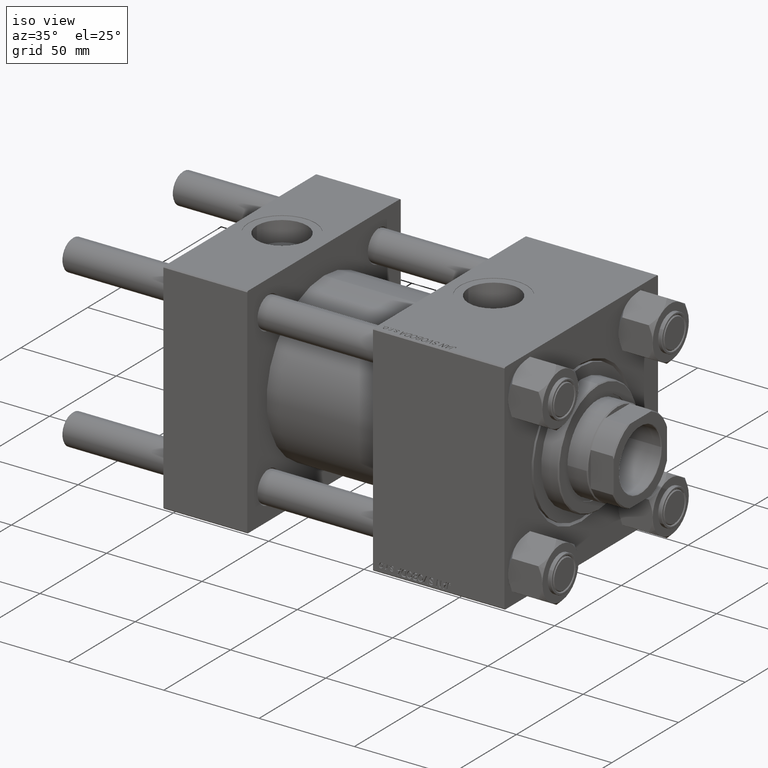
[diagram: clean part render]
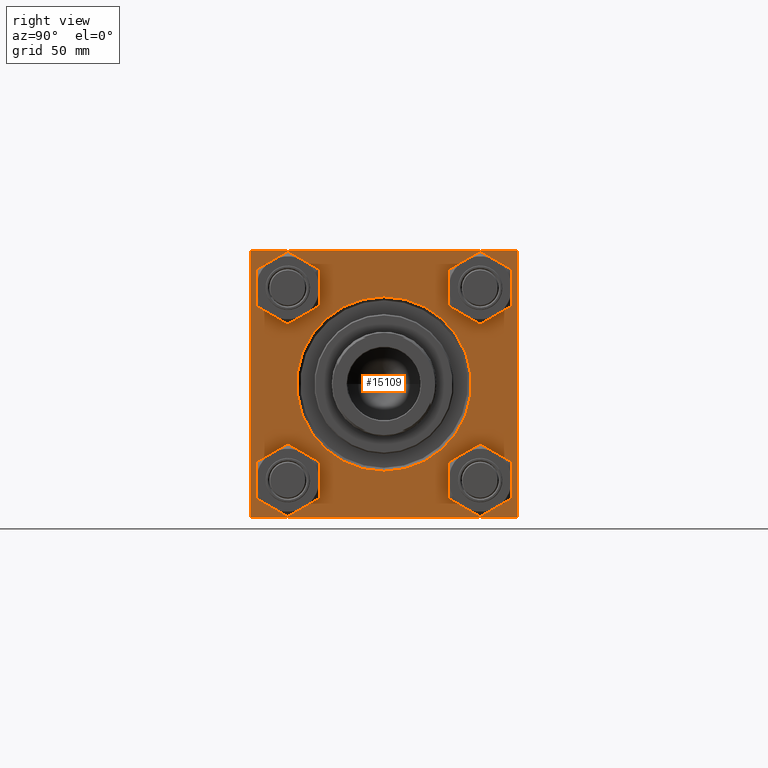
[diagram: tour spotlight — one face highlighted and labeled with its STEP entity id]
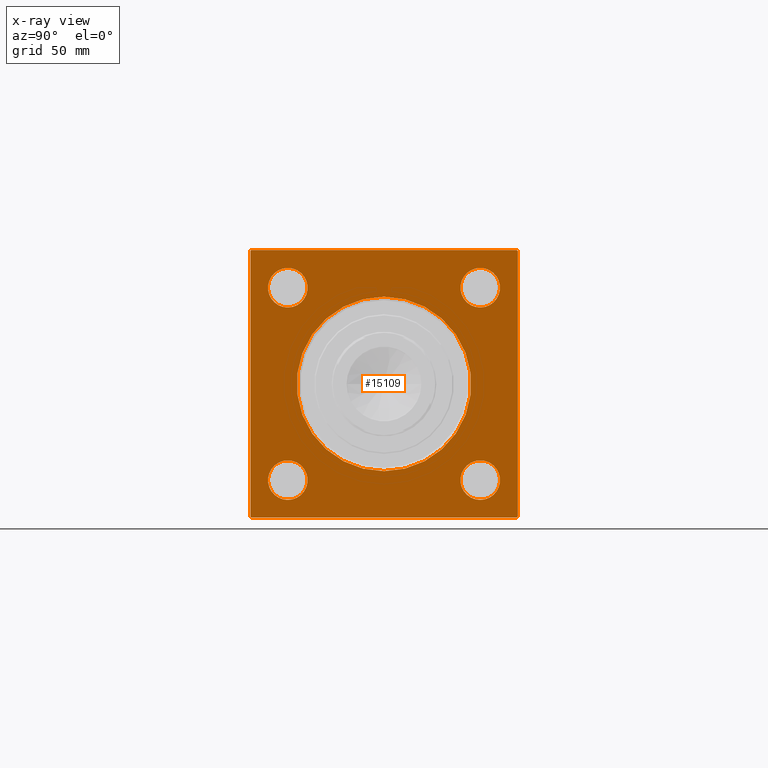
[diagram: x-ray of the same camera — body ghosted, this tour face saturated]
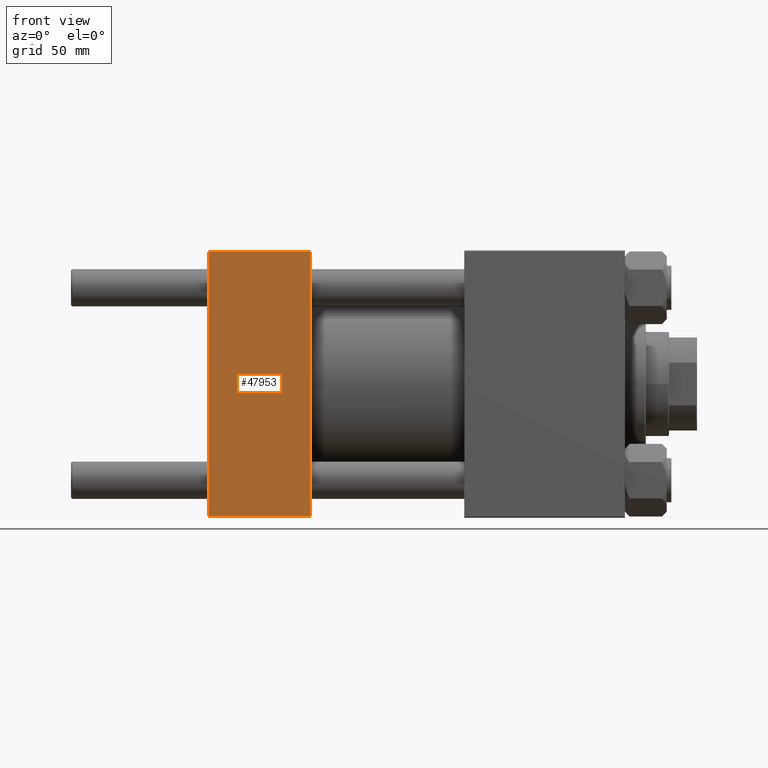
[diagram: tour spotlight — one face highlighted and labeled with its STEP entity id]
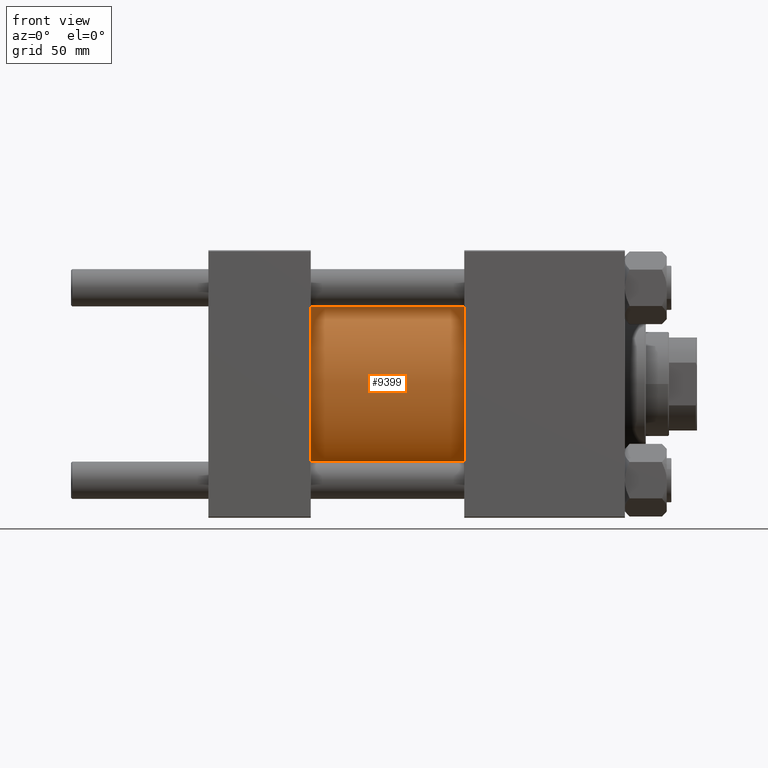
[diagram: tour spotlight — one face highlighted and labeled with its STEP entity id]
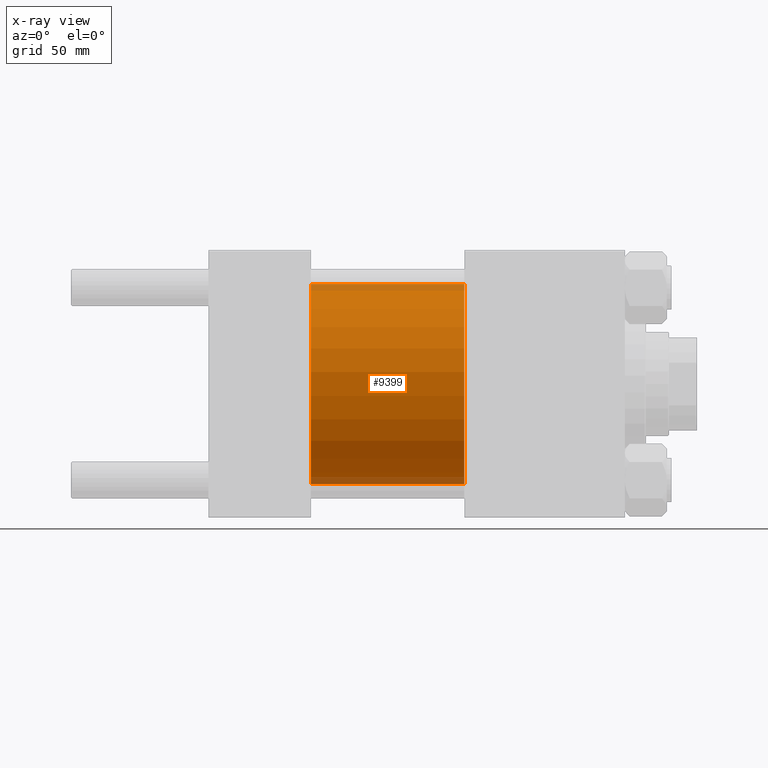
[diagram: x-ray of the same camera — body ghosted, this tour face saturated]
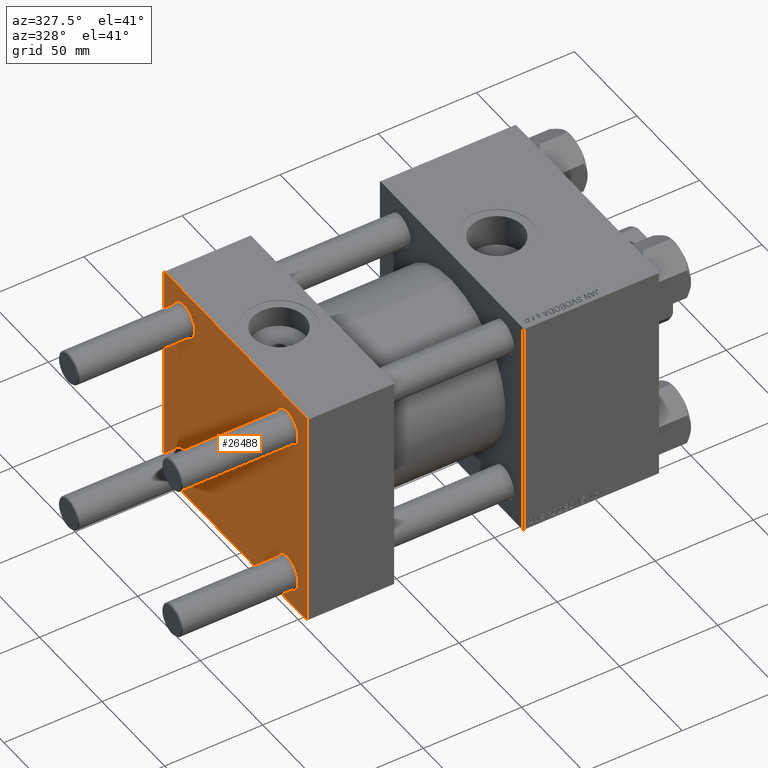
[diagram: tour spotlight — one face highlighted and labeled with its STEP entity id]
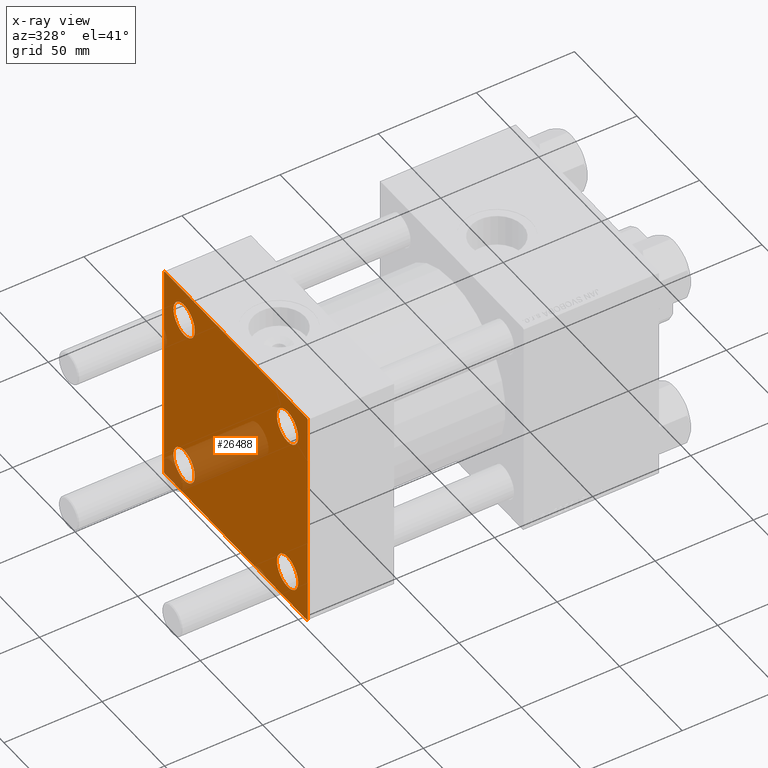
[diagram: x-ray of the same camera — body ghosted, this tour face saturated]
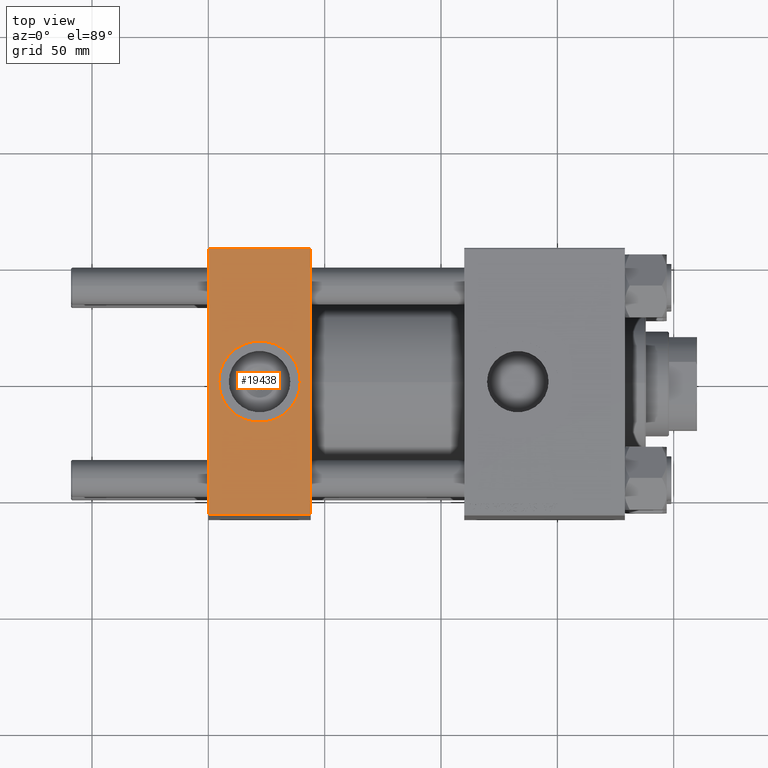
[diagram: tour spotlight — one face highlighted and labeled with its STEP entity id]
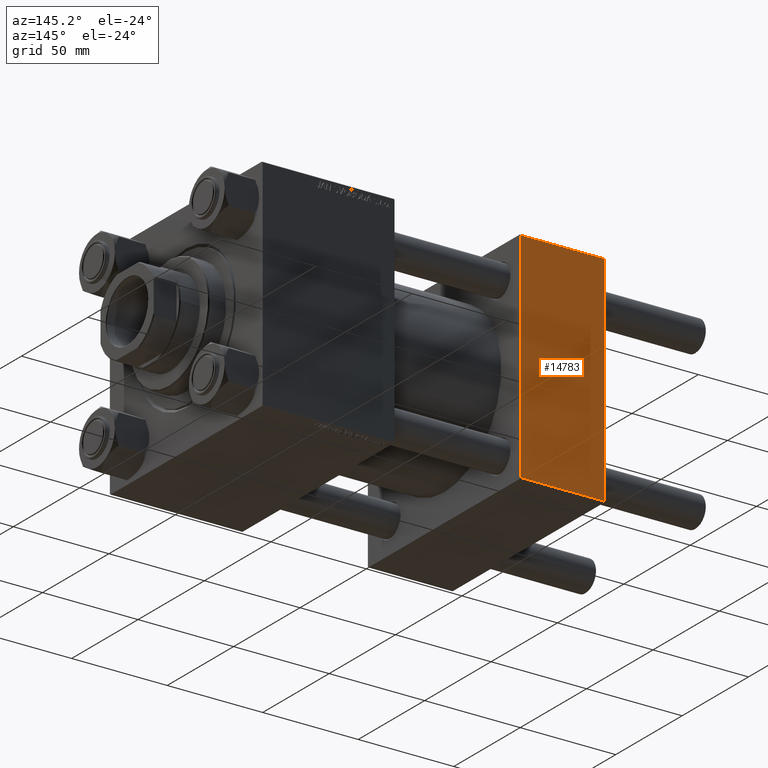
[diagram: tour spotlight — one face highlighted and labeled with its STEP entity id]
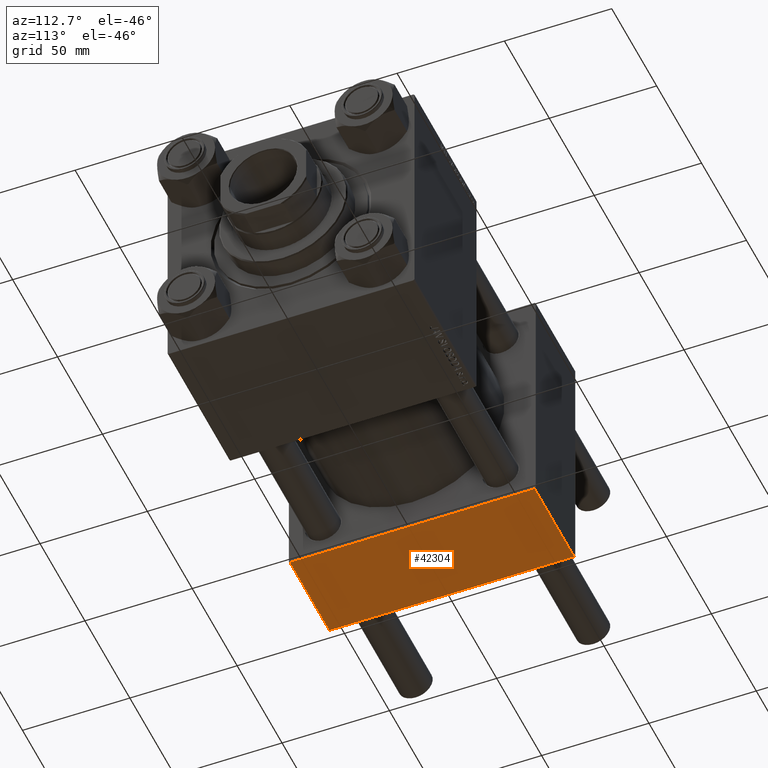
[diagram: tour spotlight — one face highlighted and labeled with its STEP entity id]
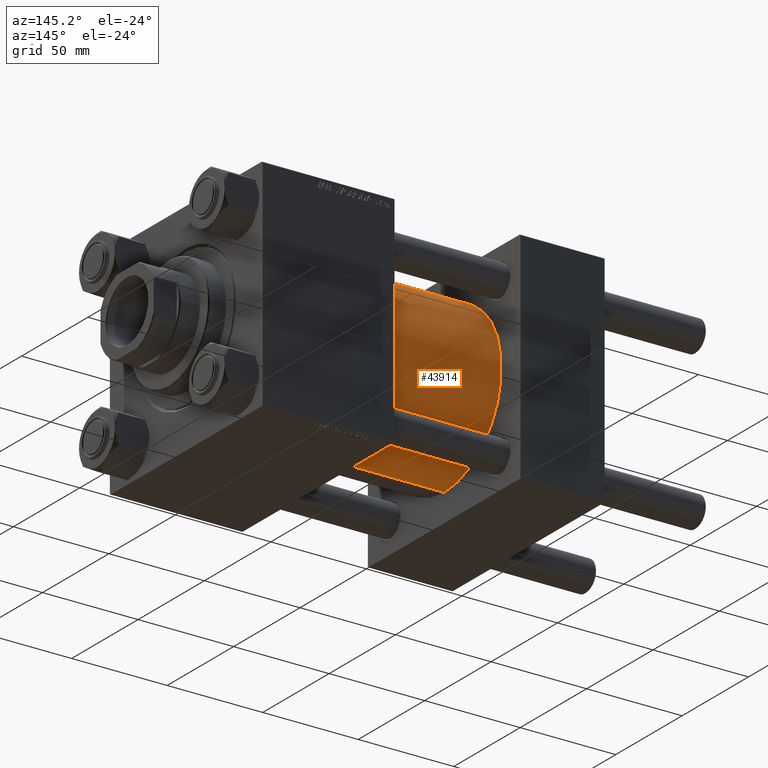
[diagram: tour spotlight — one face highlighted and labeled with its STEP entity id]
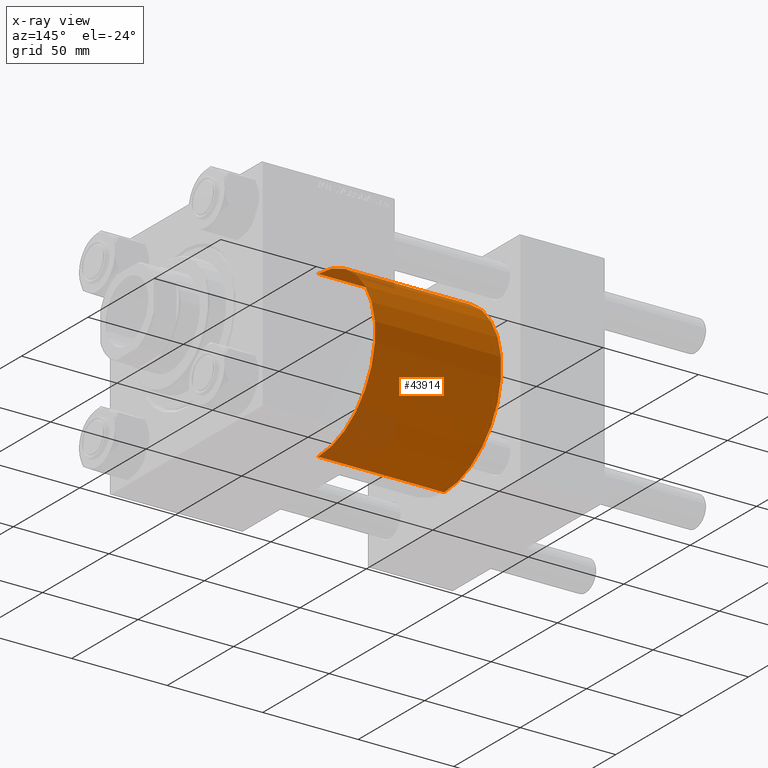
[diagram: x-ray of the same camera — body ghosted, this tour face saturated]
A machine part: a face-by-face anatomy tour. The part has 1182 B-rep faces; the first image is the clean iso view, then the 8 largest visible faces are spotlighted one at a time (largest first), each with its STEP entity span.

Face 1 — right view, entity #15109. An x-ray twin of the same camera follows (body ghosted, this face saturated) — the face is partly hidden behind the body. In plain terms, the highlighted planar face has unit normal (-1, 0, 0).
Definition (entity closure, byte-faithful):
#619 = AXIS2_PLACEMENT_3D ( 'NONE', #18191, #22260, #33699 ) ;
#854 = ORIENTED_EDGE ( 'NONE', *, *, #8303, .T. ) ;
#1419 = EDGE_CURVE ( 'NONE', #46742, #24269, #14609, .T. ) ;
#1478 = DIRECTION ( 'NONE',  ( 0.000000000000000000, -1.000000000000000000, -1.206764157201257291E-16 ) ) ;
#1896 = VECTOR ( 'NONE', #8384, 1000.000000000000000 ) ;
#1939 = VERTEX_POINT ( 'NONE', #32703 ) ;
#2101 = CARTESIAN_POINT ( 'NONE',  ( 179.0000000000000000, -56.99999999999998579, 57.49999999999999289 ) ) ;
#2364 = CIRCLE ( 'NONE', #8051, 8.500000000000007105 ) ;
#2789 = DIRECTION ( 'NONE',  ( 0.000000000000000000, 0.000000000000000000, -1.000000000000000000 ) ) ;
#2801 = AXIS2_PLACEMENT_3D ( 'NONE', #41489, #37939, #37449 ) ;
#2892 = DIRECTION ( 'NONE',  ( 0.000000000000000000, 0.000000000000000000, 1.000000000000000000 ) ) ;
#3598 = EDGE_CURVE ( 'NONE', #37750, #13960, #21989, .T. ) ;
#3931 = AXIS2_PLACEMENT_3D ( 'NONE', #26360, #41314, #7530 ) ;
#4131 = DIRECTION ( 'NONE',  ( 0.000000000000000000, -0.7071067811865672237, 0.7071067811865279218 ) ) ;
#4399 = CIRCLE ( 'NONE', #21433, 37.50000000000000711 ) ;
#4417 = ORIENTED_EDGE ( 'NONE', *, *, #20425, .T. ) ;
#4564 = VERTEX_POINT ( 'NONE', #41768 ) ;
#5117 = CARTESIAN_POINT ( 'NONE',  ( 179.0000000000000000, 41.34999999999999432, -49.85000000000001563 ) ) ;
#5842 = CARTESIAN_POINT ( 'NONE',  ( 179.0000000000000000, -57.49999999999999289, 57.49999999999999289 ) ) ;
#6172 = CARTESIAN_POINT ( 'NONE',  ( 179.0000000000000000, 0.000000000000000000, 0.000000000000000000 ) ) ;
#6333 = LINE ( 'NONE', #5842, #40419 ) ;
#6472 = DIRECTION ( 'NONE',  ( 0.000000000000000000, 0.000000000000000000, -1.000000000000000000 ) ) ;
#7029 = EDGE_CURVE ( 'NONE', #41380, #47054, #20780, .T. ) ;
#7032 = EDGE_LOOP ( 'NONE', ( #45254, #17626 ) ) ;
#7530 = DIRECTION ( 'NONE',  ( 0.000000000000000000, 0.000000000000000000, 1.000000000000000000 ) ) ;
#7865 = VERTEX_POINT ( 'NONE', #16719 ) ;
#7925 = ORIENTED_EDGE ( 'NONE', *, *, #7029, .F. ) ;
#8009 = CARTESIAN_POINT ( 'NONE',  ( 179.0000000000000000, 4.592425496802575156E-15, 37.50000000000000711 ) ) ;
#8051 = AXIS2_PLACEMENT_3D ( 'NONE', #24371, #24870, #20551 ) ;
#8303 = EDGE_CURVE ( 'NONE', #22466, #24485, #27702, .T. ) ;
#8384 = DIRECTION ( 'NONE',  ( -0.000000000000000000, -0.7071067811865328068, -0.7071067811865622277 ) ) ;
#8410 = LINE ( 'NONE', #12210, #20954 ) ;
#8724 = LINE ( 'NONE', #24238, #29789 ) ;
#9026 = CIRCLE ( 'NONE', #32563, 8.500000000000007105 ) ;
#9290 = CIRCLE ( 'NONE', #2801, 8.500000000000007105 ) ;
#9683 = DIRECTION ( 'NONE',  ( 0.000000000000000000, 0.000000000000000000, 1.000000000000000000 ) ) ;
#10232 = FACE_BOUND ( 'NONE', #18011, .T. ) ;
#10681 = CARTESIAN_POINT ( 'NONE',  ( 179.0000000000000000, -41.34999999999998721, -32.85000000000000142 ) ) ;
#11433 = AXIS2_PLACEMENT_3D ( 'NONE', #34658, #50122, #15327 ) ;
#11981 = EDGE_CURVE ( 'NONE', #1939, #39720, #20374, .T. ) ;
#12187 = CARTESIAN_POINT ( 'NONE',  ( 179.0000000000000000, -56.99999999999995737, -57.49999999999997868 ) ) ;
#12210 = CARTESIAN_POINT ( 'NONE',  ( 179.0000000000000000, 57.50000000000000000, -56.99999999999994316 ) ) ;
#12376 = EDGE_CURVE ( 'NONE', #38956, #22168, #31276, .T. ) ;
#12745 = VERTEX_POINT ( 'NONE', #16431 ) ;
#13316 = CARTESIAN_POINT ( 'NONE',  ( 179.0000000000000000, 0.000000000000000000, -37.50000000000000711 ) ) ;
#13588 = LINE ( 'NONE', #40516, #16914 ) ;
#13960 = VERTEX_POINT ( 'NONE', #8009 ) ;
#14127 = EDGE_CURVE ( 'NONE', #13960, #37750, #4399, .T. ) ;
#14284 = DIRECTION ( 'NONE',  ( -1.000000000000000000, 0.000000000000000000, -0.000000000000000000 ) ) ;
#14553 = CARTESIAN_POINT ( 'NONE',  ( 179.0000000000000000, 57.00000000000000000, -57.49999999999996447 ) ) ;
#14609 = CIRCLE ( 'NONE', #21110, 8.500000000000007105 ) ;
#15109 = ADVANCED_FACE ( 'NONE', ( #34363, #18855, #10232, #25741, #41214, #25493 ), #30561, .F. ) ;
#15327 = DIRECTION ( 'NONE',  ( 0.000000000000000000, 0.000000000000000000, 1.000000000000000000 ) ) ;
#16057 = CARTESIAN_POINT ( 'NONE',  ( 179.0000000000000000, -41.34999999999998721, -41.35000000000000853 ) ) ;
#16388 = DIRECTION ( 'NONE',  ( -1.000000000000000000, 0.000000000000000000, -0.000000000000000000 ) ) ;
#16431 = CARTESIAN_POINT ( 'NONE',  ( 179.0000000000000000, -57.49999999999999289, -56.99999999999997868 ) ) ;
#16719 = CARTESIAN_POINT ( 'NONE',  ( 179.0000000000000000, 41.34999999999999432, 49.85000000000001563 ) ) ;
#16914 = VECTOR ( 'NONE', #6472, 1000.000000000000000 ) ;
#16923 = LINE ( 'NONE', #12187, #45920 ) ;
#17288 = VECTOR ( 'NONE', #4131, 1000.000000000000000 ) ;
#17445 = CARTESIAN_POINT ( 'NONE',  ( 179.0000000000000000, -57.49999999999999289, 56.99999999999996447 ) ) ;
#17626 = ORIENTED_EDGE ( 'NONE', *, *, #18717, .T. ) ;
#17681 = ORIENTED_EDGE ( 'NONE', *, *, #26279, .T. ) ;
#17798 = ORIENTED_EDGE ( 'NONE', *, *, #28508, .T. ) ;
#18011 = EDGE_LOOP ( 'NONE', ( #20659, #46059 ) ) ;
#18191 = CARTESIAN_POINT ( 'NONE',  ( 179.0000000000000000, -41.34999999999998721, -41.35000000000000853 ) ) ;
#18431 = EDGE_LOOP ( 'NONE', ( #17798, #854 ) ) ;
#18717 = EDGE_CURVE ( 'NONE', #4564, #50178, #9290, .T. ) ;
#18855 = FACE_BOUND ( 'NONE', #7032, .T. ) ;
#19405 = ORIENTED_EDGE ( 'NONE', *, *, #1419, .T. ) ;
#19406 = CARTESIAN_POINT ( 'NONE',  ( 179.0000000000000000, 41.34999999999999432, 32.84999999999999432 ) ) ;
#20343 = EDGE_CURVE ( 'NONE', #12745, #47054, #16923, .T. ) ;
#20374 = LINE ( 'NONE', #46532, #17288 ) ;
#20425 = EDGE_CURVE ( 'NONE', #24269, #46742, #38644, .T. ) ;
#20551 = DIRECTION ( 'NONE',  ( 0.000000000000000000, 0.000000000000000000, 1.000000000000000000 ) ) ;
#20659 = ORIENTED_EDGE ( 'NONE', *, *, #26852, .T. ) ;
#20780 = LINE ( 'NONE', #36278, #45502 ) ;
#20954 = VECTOR ( 'NONE', #42935, 1000.000000000000000 ) ;
#21110 = AXIS2_PLACEMENT_3D ( 'NONE', #16057, #33322, #9683 ) ;
#21433 = AXIS2_PLACEMENT_3D ( 'NONE', #26269, #22195, #2892 ) ;
#21477 = DIRECTION ( 'NONE',  ( -1.000000000000000000, 0.000000000000000000, -0.000000000000000000 ) ) ;
#21694 = ORIENTED_EDGE ( 'NONE', *, *, #3598, .T. ) ;
#21989 = CIRCLE ( 'NONE', #11433, 37.50000000000000711 ) ;
#22168 = VERTEX_POINT ( 'NONE', #17445 ) ;
#22195 = DIRECTION ( 'NONE',  ( -1.000000000000000000, 0.000000000000000000, -0.000000000000000000 ) ) ;
#22260 = DIRECTION ( 'NONE',  ( -1.000000000000000000, 0.000000000000000000, -0.000000000000000000 ) ) ;
#22466 = VERTEX_POINT ( 'NONE', #29103 ) ;
#22547 = CARTESIAN_POINT ( 'NONE',  ( 179.0000000000000000, -41.34999999999998721, -49.85000000000002274 ) ) ;
#22765 = EDGE_CURVE ( 'NONE', #39720, #38956, #8724, .T. ) ;
#22771 = EDGE_LOOP ( 'NONE', ( #21694, #25228 ) ) ;
#23197 = CARTESIAN_POINT ( 'NONE',  ( 179.0000000000000000, 41.34999999999999432, -41.35000000000000142 ) ) ;
#23518 = VERTEX_POINT ( 'NONE', #19406 ) ;
#24238 = CARTESIAN_POINT ( 'NONE',  ( 179.0000000000000000, 57.50000000000000000, 57.50000000000000711 ) ) ;
#24269 = VERTEX_POINT ( 'NONE', #22547 ) ;
#24371 = CARTESIAN_POINT ( 'NONE',  ( 179.0000000000000000, -41.34999999999998721, 41.35000000000000853 ) ) ;
#24485 = VERTEX_POINT ( 'NONE', #36983 ) ;
#24583 = ORIENTED_EDGE ( 'NONE', *, *, #26138, .T. ) ;
#24692 = AXIS2_PLACEMENT_3D ( 'NONE', #23197, #49833, #42477 ) ;
#24870 = DIRECTION ( 'NONE',  ( -1.000000000000000000, 0.000000000000000000, -0.000000000000000000 ) ) ;
#25228 = ORIENTED_EDGE ( 'NONE', *, *, #14127, .T. ) ;
#25493 = FACE_OUTER_BOUND ( 'NONE', #33550, .T. ) ;
#25741 = FACE_BOUND ( 'NONE', #18431, .T. ) ;
#26049 = DIRECTION ( 'NONE',  ( 0.000000000000000000, 0.000000000000000000, 1.000000000000000000 ) ) ;
#26138 = EDGE_CURVE ( 'NONE', #41380, #48674, #8410, .T. ) ;
#26269 = CARTESIAN_POINT ( 'NONE',  ( 179.0000000000000000, 0.000000000000000000, 0.000000000000000000 ) ) ;
#26279 = EDGE_CURVE ( 'NONE', #22168, #12745, #6333, .T. ) ;
#26360 = CARTESIAN_POINT ( 'NONE',  ( 179.0000000000000000, 41.34999999999999432, 41.35000000000000142 ) ) ;
#26640 = CIRCLE ( 'NONE', #3931, 8.500000000000007105 ) ;
#26852 = EDGE_CURVE ( 'NONE', #23518, #7865, #26640, .T. ) ;
#27157 = AXIS2_PLACEMENT_3D ( 'NONE', #6172, #14284, #37663 ) ;
#27325 = ORIENTED_EDGE ( 'NONE', *, *, #20343, .T. ) ;
#27555 = DIRECTION ( 'NONE',  ( 0.000000000000000000, -1.000000000000000000, -1.206764157201257291E-16 ) ) ;
#27702 = CIRCLE ( 'NONE', #34172, 8.500000000000007105 ) ;
#28066 = EDGE_CURVE ( 'NONE', #1939, #48674, #13588, .T. ) ;
#28207 = CARTESIAN_POINT ( 'NONE',  ( 179.0000000000000000, -57.49999999999999289, 56.99999999999996447 ) ) ;
#28508 = EDGE_CURVE ( 'NONE', #24485, #22466, #2364, .T. ) ;
#28595 = DIRECTION ( 'NONE',  ( 0.000000000000000000, 0.000000000000000000, 1.000000000000000000 ) ) ;
#29103 = CARTESIAN_POINT ( 'NONE',  ( 179.0000000000000000, -41.34999999999998721, 49.85000000000002274 ) ) ;
#29789 = VECTOR ( 'NONE', #27555, 1000.000000000000000 ) ;
#29934 = ORIENTED_EDGE ( 'NONE', *, *, #11981, .T. ) ;
#30014 = ORIENTED_EDGE ( 'NONE', *, *, #28066, .F. ) ;
#30561 = PLANE ( 'NONE',  #27157 ) ;
#31276 = LINE ( 'NONE', #28207, #1896 ) ;
#32152 = CARTESIAN_POINT ( 'NONE',  ( 179.0000000000000000, 41.34999999999999432, 41.35000000000000142 ) ) ;
#32563 = AXIS2_PLACEMENT_3D ( 'NONE', #32152, #16388, #28595 ) ;
#32703 = CARTESIAN_POINT ( 'NONE',  ( 179.0000000000000000, 57.50000000000000000, 57.00000000000000711 ) ) ;
#33322 = DIRECTION ( 'NONE',  ( -1.000000000000000000, 0.000000000000000000, -0.000000000000000000 ) ) ;
#33550 = EDGE_LOOP ( 'NONE', ( #17681, #27325, #7925, #24583, #30014, #29934, #49314, #42273 ) ) ;
#33699 = DIRECTION ( 'NONE',  ( 0.000000000000000000, 0.000000000000000000, 1.000000000000000000 ) ) ;
#34172 = AXIS2_PLACEMENT_3D ( 'NONE', #41519, #21477, #26049 ) ;
#34363 = FACE_BOUND ( 'NONE', #49420, .T. ) ;
#34658 = CARTESIAN_POINT ( 'NONE',  ( 179.0000000000000000, 0.000000000000000000, 0.000000000000000000 ) ) ;
#36278 = CARTESIAN_POINT ( 'NONE',  ( 179.0000000000000000, 57.50000000000000000, -57.49999999999996447 ) ) ;
#36983 = CARTESIAN_POINT ( 'NONE',  ( 179.0000000000000000, -41.34999999999998721, 32.85000000000000142 ) ) ;
#37449 = DIRECTION ( 'NONE',  ( 0.000000000000000000, 0.000000000000000000, 1.000000000000000000 ) ) ;
#37663 = DIRECTION ( 'NONE',  ( -0.000000000000000000, 0.000000000000000000, 1.000000000000000000 ) ) ;
#37750 = VERTEX_POINT ( 'NONE', #13316 ) ;
#37837 = EDGE_CURVE ( 'NONE', #7865, #23518, #9026, .T. ) ;
#37939 = DIRECTION ( 'NONE',  ( -1.000000000000000000, 0.000000000000000000, -0.000000000000000000 ) ) ;
#38644 = CIRCLE ( 'NONE', #619, 8.500000000000007105 ) ;
#38956 = VERTEX_POINT ( 'NONE', #2101 ) ;
#39720 = VERTEX_POINT ( 'NONE', #48680 ) ;
#40147 = CARTESIAN_POINT ( 'NONE',  ( 179.0000000000000000, 57.50000000000000000, -56.99999999999994316 ) ) ;
#40303 = DIRECTION ( 'NONE',  ( 0.000000000000000000, 0.7071067811865721087, -0.7071067811865230368 ) ) ;
#40419 = VECTOR ( 'NONE', #2789, 1000.000000000000000 ) ;
#40516 = CARTESIAN_POINT ( 'NONE',  ( 179.0000000000000000, 57.50000000000000000, 57.50000000000000711 ) ) ;
#41214 = FACE_BOUND ( 'NONE', #22771, .T. ) ;
#41314 = DIRECTION ( 'NONE',  ( -1.000000000000000000, 0.000000000000000000, -0.000000000000000000 ) ) ;
#41380 = VERTEX_POINT ( 'NONE', #14553 ) ;
#41489 = CARTESIAN_POINT ( 'NONE',  ( 179.0000000000000000, 41.34999999999999432, -41.35000000000000142 ) ) ;
#41519 = CARTESIAN_POINT ( 'NONE',  ( 179.0000000000000000, -41.34999999999998721, 41.35000000000000853 ) ) ;
#41768 = CARTESIAN_POINT ( 'NONE',  ( 179.0000000000000000, 41.34999999999999432, -32.84999999999999432 ) ) ;
#42273 = ORIENTED_EDGE ( 'NONE', *, *, #12376, .T. ) ;
#42477 = DIRECTION ( 'NONE',  ( 0.000000000000000000, 0.000000000000000000, 1.000000000000000000 ) ) ;
#42935 = DIRECTION ( 'NONE',  ( -0.000000000000000000, 0.7071067811865279218, 0.7071067811865672237 ) ) ;
#45254 = ORIENTED_EDGE ( 'NONE', *, *, #45687, .T. ) ;
#45502 = VECTOR ( 'NONE', #1478, 1000.000000000000000 ) ;
#45687 = EDGE_CURVE ( 'NONE', #50178, #4564, #46581, .T. ) ;
#45920 = VECTOR ( 'NONE', #40303, 1000.000000000000000 ) ;
#46059 = ORIENTED_EDGE ( 'NONE', *, *, #37837, .T. ) ;
#46532 = CARTESIAN_POINT ( 'NONE',  ( 179.0000000000000000, 56.99999999999997158, 57.50000000000000711 ) ) ;
#46581 = CIRCLE ( 'NONE', #24692, 8.500000000000007105 ) ;
#46742 = VERTEX_POINT ( 'NONE', #10681 ) ;
#47054 = VERTEX_POINT ( 'NONE', #48215 ) ;
#48215 = CARTESIAN_POINT ( 'NONE',  ( 179.0000000000000000, -56.99999999999995737, -57.49999999999997868 ) ) ;
#48674 = VERTEX_POINT ( 'NONE', #40147 ) ;
#48680 = CARTESIAN_POINT ( 'NONE',  ( 179.0000000000000000, 56.99999999999997158, 57.50000000000000711 ) ) ;
#49314 = ORIENTED_EDGE ( 'NONE', *, *, #22765, .T. ) ;
#49420 = EDGE_LOOP ( 'NONE', ( #4417, #19405 ) ) ;
#49833 = DIRECTION ( 'NONE',  ( -1.000000000000000000, 0.000000000000000000, -0.000000000000000000 ) ) ;
#50122 = DIRECTION ( 'NONE',  ( -1.000000000000000000, 0.000000000000000000, -0.000000000000000000 ) ) ;
#50178 = VERTEX_POINT ( 'NONE', #5117 ) ;

Face 2 — front view, entity #47953. In plain terms, the highlighted planar face has unit normal (0, 1, 0).
Definition (entity closure, byte-faithful):
#724 = FACE_OUTER_BOUND ( 'NONE', #48084, .T. ) ;
#1221 = PLANE ( 'NONE',  #12609 ) ;
#1599 = EDGE_CURVE ( 'NONE', #19690, #31829, #20576, .T. ) ;
#5822 = CARTESIAN_POINT ( 'NONE',  ( 44.00000000000000000, -57.50000000000000711, 57.49999999999999289 ) ) ;
#6178 = EDGE_CURVE ( 'NONE', #19690, #45276, #10615, .T. ) ;
#8586 = DIRECTION ( 'NONE',  ( 0.000000000000000000, -0.000000000000000000, 1.000000000000000000 ) ) ;
#10615 = LINE ( 'NONE', #34500, #13809 ) ;
#10948 = ORIENTED_EDGE ( 'NONE', *, *, #39847, .T. ) ;
#12246 = VECTOR ( 'NONE', #33132, 1000.000000000000000 ) ;
#12609 = AXIS2_PLACEMENT_3D ( 'NONE', #35769, #31722, #8586 ) ;
#13809 = VECTOR ( 'NONE', #42099, 1000.000000000000000 ) ;
#13915 = CARTESIAN_POINT ( 'NONE',  ( 0.000000000000000000, -57.50000000000000711, -57.00000000000000711 ) ) ;
#16074 = ORIENTED_EDGE ( 'NONE', *, *, #33488, .T. ) ;
#17873 = CARTESIAN_POINT ( 'NONE',  ( 0.000000000000000000, -57.50000000000000711, 57.49999999999999289 ) ) ;
#19497 = LINE ( 'NONE', #33994, #39119 ) ;
#19690 = VERTEX_POINT ( 'NONE', #26535 ) ;
#20576 = LINE ( 'NONE', #5822, #41372 ) ;
#24399 = DIRECTION ( 'NONE',  ( 0.000000000000000000, 0.000000000000000000, -1.000000000000000000 ) ) ;
#26026 = ORIENTED_EDGE ( 'NONE', *, *, #6178, .T. ) ;
#26535 = CARTESIAN_POINT ( 'NONE',  ( 44.00000000000000000, -57.50000000000000711, 57.00000000000000711 ) ) ;
#31062 = VERTEX_POINT ( 'NONE', #13915 ) ;
#31722 = DIRECTION ( 'NONE',  ( -0.000000000000000000, 1.000000000000000000, 0.000000000000000000 ) ) ;
#31829 = VERTEX_POINT ( 'NONE', #34558 ) ;
#33132 = DIRECTION ( 'NONE',  ( 0.000000000000000000, 0.000000000000000000, -1.000000000000000000 ) ) ;
#33488 = EDGE_CURVE ( 'NONE', #45276, #31062, #40484, .T. ) ;
#33994 = CARTESIAN_POINT ( 'NONE',  ( 44.00000000000000000, -57.50000000000000711, -57.00000000000000711 ) ) ;
#34500 = CARTESIAN_POINT ( 'NONE',  ( 44.00000000000000000, -57.50000000000000711, 57.00000000000000711 ) ) ;
#34558 = CARTESIAN_POINT ( 'NONE',  ( 44.00000000000000000, -57.50000000000000711, -57.00000000000000711 ) ) ;
#35769 = CARTESIAN_POINT ( 'NONE',  ( 44.00000000000000000, -57.50000000000000711, 57.49999999999999289 ) ) ;
#39119 = VECTOR ( 'NONE', #41601, 1000.000000000000000 ) ;
#39847 = EDGE_CURVE ( 'NONE', #31062, #31829, #19497, .T. ) ;
#40484 = LINE ( 'NONE', #17873, #12246 ) ;
#41372 = VECTOR ( 'NONE', #24399, 1000.000000000000000 ) ;
#41601 = DIRECTION ( 'NONE',  ( 1.000000000000000000, 0.000000000000000000, 0.000000000000000000 ) ) ;
#42099 = DIRECTION ( 'NONE',  ( -1.000000000000000000, 0.000000000000000000, 0.000000000000000000 ) ) ;
#44481 = ORIENTED_EDGE ( 'NONE', *, *, #1599, .F. ) ;
#45276 = VERTEX_POINT ( 'NONE', #48617 ) ;
#47953 = ADVANCED_FACE ( 'NONE', ( #724 ), #1221, .F. ) ;
#48084 = EDGE_LOOP ( 'NONE', ( #16074, #10948, #44481, #26026 ) ) ;
#48617 = CARTESIAN_POINT ( 'NONE',  ( 0.000000000000000000, -57.50000000000000711, 57.00000000000000711 ) ) ;

Face 3 — front view, entity #9399. An x-ray twin of the same camera follows (body ghosted, this face saturated) — the face is partly hidden behind the body. In plain terms, the highlighted cylindrical surface (partial cylindrical patch) has radius 43 mm, axis along (-1, -0, -0).
Definition (entity closure, byte-faithful):
#56 = VERTEX_POINT ( 'NONE', #7651 ) ;
#177 = AXIS2_PLACEMENT_3D ( 'NONE', #4765, #35758, #966 ) ;
#966 = DIRECTION ( 'NONE',  ( 0.000000000000000000, 0.000000000000000000, 1.000000000000000000 ) ) ;
#1631 = CARTESIAN_POINT ( 'NONE',  ( 110.0000000000000000, 0.000000000000000000, 0.000000000000000000 ) ) ;
#1888 = DIRECTION ( 'NONE',  ( 1.000000000000000000, 0.000000000000000000, 0.000000000000000000 ) ) ;
#2194 = LINE ( 'NONE', #17670, #10047 ) ;
#2807 = AXIS2_PLACEMENT_3D ( 'NONE', #18480, #29438, #41091 ) ;
#4765 = CARTESIAN_POINT ( 'NONE',  ( 110.0000000000000000, 0.000000000000000000, 0.000000000000000000 ) ) ;
#4911 = ORIENTED_EDGE ( 'NONE', *, *, #12888, .F. ) ;
#7651 = CARTESIAN_POINT ( 'NONE',  ( 110.0000000000000000, 5.265981236333618470E-15, -43.00000000000000000 ) ) ;
#9399 = ADVANCED_FACE ( 'NONE', ( #24082 ), #39549, .T. ) ;
#10047 = VECTOR ( 'NONE', #47416, 1000.000000000000000 ) ;
#12888 = EDGE_CURVE ( 'NONE', #56, #22222, #2194, .T. ) ;
#15711 = EDGE_CURVE ( 'NONE', #16449, #22222, #23080, .T. ) ;
#16449 = VERTEX_POINT ( 'NONE', #16496 ) ;
#16496 = CARTESIAN_POINT ( 'NONE',  ( 44.00000000000000000, 0.000000000000000000, 43.00000000000000000 ) ) ;
#17670 = CARTESIAN_POINT ( 'NONE',  ( 110.0000000000000000, 5.265981236333618470E-15, -43.00000000000000000 ) ) ;
#18480 = CARTESIAN_POINT ( 'NONE',  ( 44.00000000000000000, 0.000000000000000000, 0.000000000000000000 ) ) ;
#18629 = AXIS2_PLACEMENT_3D ( 'NONE', #1631, #1888, #44531 ) ;
#20487 = CARTESIAN_POINT ( 'NONE',  ( 110.0000000000000000, 0.000000000000000000, 43.00000000000000000 ) ) ;
#21758 = LINE ( 'NONE', #37511, #22119 ) ;
#22119 = VECTOR ( 'NONE', #48656, 1000.000000000000000 ) ;
#22222 = VERTEX_POINT ( 'NONE', #41066 ) ;
#23080 = CIRCLE ( 'NONE', #2807, 43.00000000000000000 ) ;
#24082 = FACE_OUTER_BOUND ( 'NONE', #46544, .T. ) ;
#27581 = CIRCLE ( 'NONE', #18629, 43.00000000000000000 ) ;
#28870 = ORIENTED_EDGE ( 'NONE', *, *, #15711, .T. ) ;
#29438 = DIRECTION ( 'NONE',  ( 1.000000000000000000, -0.000000000000000000, 0.000000000000000000 ) ) ;
#30624 = EDGE_CURVE ( 'NONE', #50091, #56, #27581, .T. ) ;
#35758 = DIRECTION ( 'NONE',  ( -1.000000000000000000, -0.000000000000000000, -0.000000000000000000 ) ) ;
#37511 = CARTESIAN_POINT ( 'NONE',  ( 110.0000000000000000, 0.000000000000000000, 43.00000000000000000 ) ) ;
#39549 = CYLINDRICAL_SURFACE ( 'NONE', #177, 43.00000000000000000 ) ;
#40914 = EDGE_CURVE ( 'NONE', #50091, #16449, #21758, .T. ) ;
#41066 = CARTESIAN_POINT ( 'NONE',  ( 44.00000000000000000, 5.265981236333618470E-15, -43.00000000000000000 ) ) ;
#41091 = DIRECTION ( 'NONE',  ( 0.000000000000000000, 0.000000000000000000, 1.000000000000000000 ) ) ;
#44531 = DIRECTION ( 'NONE',  ( 0.000000000000000000, 0.000000000000000000, -1.000000000000000000 ) ) ;
#46544 = EDGE_LOOP ( 'NONE', ( #4911, #48097, #50060, #28870 ) ) ;
#47416 = DIRECTION ( 'NONE',  ( -1.000000000000000000, -0.000000000000000000, -0.000000000000000000 ) ) ;
#48097 = ORIENTED_EDGE ( 'NONE', *, *, #30624, .F. ) ;
#48656 = DIRECTION ( 'NONE',  ( -1.000000000000000000, -0.000000000000000000, -0.000000000000000000 ) ) ;
#50060 = ORIENTED_EDGE ( 'NONE', *, *, #40914, .T. ) ;
#50091 = VERTEX_POINT ( 'NONE', #20487 ) ;

Face 4 — auxiliary view, entity #26488. An x-ray twin of the same camera follows (body ghosted, this face saturated) — the face is partly hidden behind the body. In plain terms, the highlighted planar face has unit normal (-1, 0, 0).
Definition (entity closure, byte-faithful):
#99 = CARTESIAN_POINT ( 'NONE',  ( 0.000000000000000000, -41.34999999999998721, 41.35000000000000853 ) ) ;
#448 = AXIS2_PLACEMENT_3D ( 'NONE', #99, #26768, #46555 ) ;
#1635 = EDGE_CURVE ( 'NONE', #4584, #39459, #19486, .T. ) ;
#1910 = ORIENTED_EDGE ( 'NONE', *, *, #16147, .T. ) ;
#1925 = EDGE_LOOP ( 'NONE', ( #2726, #6089 ) ) ;
#2075 = AXIS2_PLACEMENT_3D ( 'NONE', #46679, #8074, #4277 ) ;
#2283 = DIRECTION ( 'NONE',  ( 1.000000000000000000, -0.000000000000000000, 0.000000000000000000 ) ) ;
#2476 = LINE ( 'NONE', #38017, #34200 ) ;
#2527 = VERTEX_POINT ( 'NONE', #41992 ) ;
#2537 = CARTESIAN_POINT ( 'NONE',  ( 0.000000000000000000, 41.34999999999999432, 41.35000000000000142 ) ) ;
#2680 = EDGE_CURVE ( 'NONE', #49818, #31401, #40135, .T. ) ;
#2726 = ORIENTED_EDGE ( 'NONE', *, *, #21881, .T. ) ;
#2810 = EDGE_CURVE ( 'NONE', #49226, #25784, #43081, .T. ) ;
#4043 = DIRECTION ( 'NONE',  ( -0.000000000000000000, -0.7071067811865376918, -0.7071067811865573427 ) ) ;
#4277 = DIRECTION ( 'NONE',  ( 0.000000000000000000, 0.000000000000000000, 1.000000000000000000 ) ) ;
#4584 = VERTEX_POINT ( 'NONE', #38726 ) ;
#4939 = DIRECTION ( 'NONE',  ( 1.000000000000000000, -0.000000000000000000, 0.000000000000000000 ) ) ;
#5139 = ORIENTED_EDGE ( 'NONE', *, *, #2810, .T. ) ;
#5538 = VERTEX_POINT ( 'NONE', #24993 ) ;
#5837 = DIRECTION ( 'NONE',  ( 0.000000000000000000, 0.000000000000000000, -1.000000000000000000 ) ) ;
#5943 = DIRECTION ( 'NONE',  ( 0.000000000000000000, 0.7071067811865573427, -0.7071067811865376918 ) ) ;
#6089 = ORIENTED_EDGE ( 'NONE', *, *, #1635, .T. ) ;
#6525 = DIRECTION ( 'NONE',  ( 0.000000000000000000, -1.000000000000000000, -1.206764157201257045E-16 ) ) ;
#6678 = ORIENTED_EDGE ( 'NONE', *, *, #35730, .T. ) ;
#6855 = CIRCLE ( 'NONE', #13338, 8.499999999999992895 ) ;
#6991 = CARTESIAN_POINT ( 'NONE',  ( 0.000000000000000000, 41.34999999999999432, -41.35000000000000142 ) ) ;
#7369 = VECTOR ( 'NONE', #5837, 1000.000000000000000 ) ;
#8074 = DIRECTION ( 'NONE',  ( 1.000000000000000000, -0.000000000000000000, 0.000000000000000000 ) ) ;
#8440 = CIRCLE ( 'NONE', #28734, 8.499999999999992895 ) ;
#8779 = AXIS2_PLACEMENT_3D ( 'NONE', #37834, #22593, #14698 ) ;
#9444 = ORIENTED_EDGE ( 'NONE', *, *, #2680, .T. ) ;
#9643 = DIRECTION ( 'NONE',  ( 0.000000000000000000, 0.000000000000000000, 1.000000000000000000 ) ) ;
#10158 = CARTESIAN_POINT ( 'NONE',  ( 0.000000000000000000, 41.34999999999999432, 49.85000000000000142 ) ) ;
#10754 = ORIENTED_EDGE ( 'NONE', *, *, #18338, .T. ) ;
#11140 = LINE ( 'NONE', #49737, #31329 ) ;
#11394 = DIRECTION ( 'NONE',  ( 0.000000000000000000, -1.000000000000000000, -1.206764157201257045E-16 ) ) ;
#11493 = CIRCLE ( 'NONE', #39884, 8.499999999999992895 ) ;
#12042 = DIRECTION ( 'NONE',  ( 1.000000000000000000, -0.000000000000000000, 0.000000000000000000 ) ) ;
#12143 = DIRECTION ( 'NONE',  ( 1.000000000000000000, -0.000000000000000000, 0.000000000000000000 ) ) ;
#12246 = VECTOR ( 'NONE', #33132, 1000.000000000000000 ) ;
#12337 = VERTEX_POINT ( 'NONE', #23640 ) ;
#13338 = AXIS2_PLACEMENT_3D ( 'NONE', #6991, #4939, #28082 ) ;
#13915 = CARTESIAN_POINT ( 'NONE',  ( 0.000000000000000000, -57.50000000000000711, -57.00000000000000711 ) ) ;
#14020 = CARTESIAN_POINT ( 'NONE',  ( 0.000000000000000000, 41.34999999999999432, -32.85000000000000853 ) ) ;
#14069 = EDGE_CURVE ( 'NONE', #2527, #49818, #32887, .T. ) ;
#14348 = LINE ( 'NONE', #49650, #45378 ) ;
#14698 = DIRECTION ( 'NONE',  ( -0.000000000000000000, 0.000000000000000000, 1.000000000000000000 ) ) ;
#15316 = VERTEX_POINT ( 'NONE', #28753 ) ;
#16147 = EDGE_CURVE ( 'NONE', #48481, #33110, #6855, .T. ) ;
#16205 = LINE ( 'NONE', #34785, #17384 ) ;
#17384 = VECTOR ( 'NONE', #4043, 1000.000000000000114 ) ;
#17873 = CARTESIAN_POINT ( 'NONE',  ( 0.000000000000000000, -57.50000000000000711, 57.49999999999999289 ) ) ;
#18338 = EDGE_CURVE ( 'NONE', #5538, #12337, #29679, .T. ) ;
#18519 = PLANE ( 'NONE',  #8779 ) ;
#18705 = ORIENTED_EDGE ( 'NONE', *, *, #47526, .T. ) ;
#18710 = AXIS2_PLACEMENT_3D ( 'NONE', #36824, #48221, #48467 ) ;
#19013 = EDGE_CURVE ( 'NONE', #2527, #41890, #11140, .T. ) ;
#19271 = DIRECTION ( 'NONE',  ( 0.000000000000000000, 0.000000000000000000, 1.000000000000000000 ) ) ;
#19486 = CIRCLE ( 'NONE', #18710, 8.499999999999992895 ) ;
#20133 = AXIS2_PLACEMENT_3D ( 'NONE', #2537, #2283, #9643 ) ;
#21408 = EDGE_LOOP ( 'NONE', ( #5139, #21735 ) ) ;
#21680 = ORIENTED_EDGE ( 'NONE', *, *, #29598, .T. ) ;
#21735 = ORIENTED_EDGE ( 'NONE', *, *, #43666, .T. ) ;
#21881 = EDGE_CURVE ( 'NONE', #39459, #4584, #35557, .T. ) ;
#22234 = VECTOR ( 'NONE', #5943, 1000.000000000000114 ) ;
#22332 = CIRCLE ( 'NONE', #448, 8.499999999999992895 ) ;
#22593 = DIRECTION ( 'NONE',  ( -1.000000000000000000, 0.000000000000000000, -0.000000000000000000 ) ) ;
#22725 = CARTESIAN_POINT ( 'NONE',  ( 0.000000000000000000, -41.34999999999998721, -32.85000000000001563 ) ) ;
#23111 = ORIENTED_EDGE ( 'NONE', *, *, #19013, .F. ) ;
#23246 = DIRECTION ( 'NONE',  ( 0.000000000000000000, 0.000000000000000000, 1.000000000000000000 ) ) ;
#23258 = ORIENTED_EDGE ( 'NONE', *, *, #34356, .T. ) ;
#23640 = CARTESIAN_POINT ( 'NONE',  ( 0.000000000000000000, -41.34999999999998721, 49.85000000000000853 ) ) ;
#24993 = CARTESIAN_POINT ( 'NONE',  ( 0.000000000000000000, -41.34999999999998721, 32.85000000000001563 ) ) ;
#25784 = VERTEX_POINT ( 'NONE', #39700 ) ;
#25916 = CARTESIAN_POINT ( 'NONE',  ( -0.000000000000000000, -57.25000000000081712, 57.24999999999922551 ) ) ;
#26060 = AXIS2_PLACEMENT_3D ( 'NONE', #27671, #12143, #19271 ) ;
#26164 = FACE_BOUND ( 'NONE', #1925, .T. ) ;
#26488 = ADVANCED_FACE ( 'NONE', ( #42637, #30483, #45433, #26164, #34276 ), #18519, .T. ) ;
#26685 = EDGE_LOOP ( 'NONE', ( #18705, #10754 ) ) ;
#26768 = DIRECTION ( 'NONE',  ( 1.000000000000000000, -0.000000000000000000, 0.000000000000000000 ) ) ;
#27671 = CARTESIAN_POINT ( 'NONE',  ( 0.000000000000000000, -41.34999999999998721, -41.35000000000000853 ) ) ;
#28082 = DIRECTION ( 'NONE',  ( 0.000000000000000000, 0.000000000000000000, 1.000000000000000000 ) ) ;
#28316 = ORIENTED_EDGE ( 'NONE', *, *, #33488, .F. ) ;
#28734 = AXIS2_PLACEMENT_3D ( 'NONE', #30278, #37385, #49796 ) ;
#28753 = CARTESIAN_POINT ( 'NONE',  ( 0.000000000000000000, 57.00000000000002132, -57.49999999999999289 ) ) ;
#29225 = CARTESIAN_POINT ( 'NONE',  ( 0.000000000000000000, -57.00000000000000711, -57.50000000000000711 ) ) ;
#29598 = EDGE_CURVE ( 'NONE', #39383, #31062, #14348, .T. ) ;
#29679 = CIRCLE ( 'NONE', #2075, 8.499999999999992895 ) ;
#30234 = DIRECTION ( 'NONE',  ( -0.000000000000000000, 0.7071067811865376918, 0.7071067811865573427 ) ) ;
#30278 = CARTESIAN_POINT ( 'NONE',  ( 0.000000000000000000, -41.34999999999998721, -41.35000000000000853 ) ) ;
#30436 = CARTESIAN_POINT ( 'NONE',  ( 0.000000000000000000, 57.49999999999999289, 57.00000000000003553 ) ) ;
#30483 = FACE_BOUND ( 'NONE', #21408, .T. ) ;
#30583 = EDGE_LOOP ( 'NONE', ( #1910, #6678 ) ) ;
#31062 = VERTEX_POINT ( 'NONE', #13915 ) ;
#31329 = VECTOR ( 'NONE', #11394, 1000.000000000000000 ) ;
#31377 = CARTESIAN_POINT ( 'NONE',  ( 0.000000000000000000, 41.34999999999999432, -41.35000000000000142 ) ) ;
#31401 = VERTEX_POINT ( 'NONE', #38163 ) ;
#32437 = CARTESIAN_POINT ( 'NONE',  ( 0.000000000000000000, 41.34999999999999432, -49.85000000000000142 ) ) ;
#32887 = LINE ( 'NONE', #40740, #22234 ) ;
#33110 = VERTEX_POINT ( 'NONE', #32437 ) ;
#33132 = DIRECTION ( 'NONE',  ( 0.000000000000000000, 0.000000000000000000, -1.000000000000000000 ) ) ;
#33488 = EDGE_CURVE ( 'NONE', #45276, #31062, #40484, .T. ) ;
#34030 = LINE ( 'NONE', #25916, #44255 ) ;
#34200 = VECTOR ( 'NONE', #6525, 1000.000000000000000 ) ;
#34276 = FACE_OUTER_BOUND ( 'NONE', #49009, .T. ) ;
#34356 = EDGE_CURVE ( 'NONE', #15316, #39383, #2476, .T. ) ;
#34785 = CARTESIAN_POINT ( 'NONE',  ( 0.000000000000000000, 57.25000000000081712, -57.24999999999922551 ) ) ;
#35557 = CIRCLE ( 'NONE', #20133, 8.499999999999992895 ) ;
#35730 = EDGE_CURVE ( 'NONE', #33110, #48481, #11493, .T. ) ;
#36824 = CARTESIAN_POINT ( 'NONE',  ( 0.000000000000000000, 41.34999999999999432, 41.35000000000000142 ) ) ;
#37385 = DIRECTION ( 'NONE',  ( 1.000000000000000000, -0.000000000000000000, 0.000000000000000000 ) ) ;
#37834 = CARTESIAN_POINT ( 'NONE',  ( 0.000000000000000000, 0.000000000000000000, 0.000000000000000000 ) ) ;
#38017 = CARTESIAN_POINT ( 'NONE',  ( 0.000000000000000000, 57.49999999999999289, -57.49999999999999289 ) ) ;
#38163 = CARTESIAN_POINT ( 'NONE',  ( 0.000000000000000000, 57.49999999999999289, -57.00000000000000711 ) ) ;
#38726 = CARTESIAN_POINT ( 'NONE',  ( 0.000000000000000000, 41.34999999999999432, 32.85000000000000853 ) ) ;
#39383 = VERTEX_POINT ( 'NONE', #29225 ) ;
#39459 = VERTEX_POINT ( 'NONE', #10158 ) ;
#39700 = CARTESIAN_POINT ( 'NONE',  ( 0.000000000000000000, -41.34999999999998721, -49.85000000000000853 ) ) ;
#39884 = AXIS2_PLACEMENT_3D ( 'NONE', #31377, #12042, #23246 ) ;
#40135 = LINE ( 'NONE', #40627, #7369 ) ;
#40484 = LINE ( 'NONE', #17873, #12246 ) ;
#40620 = CARTESIAN_POINT ( 'NONE',  ( 0.000000000000000000, -57.00000000000003553, 57.49999999999999289 ) ) ;
#40627 = CARTESIAN_POINT ( 'NONE',  ( 0.000000000000000000, 57.49999999999999289, 57.50000000000000711 ) ) ;
#40740 = CARTESIAN_POINT ( 'NONE',  ( 0.000000000000000000, 57.24999999999922551, 57.25000000000081712 ) ) ;
#40775 = ORIENTED_EDGE ( 'NONE', *, *, #48880, .T. ) ;
#41890 = VERTEX_POINT ( 'NONE', #40620 ) ;
#41992 = CARTESIAN_POINT ( 'NONE',  ( 0.000000000000000000, 57.00000000000000711, 57.50000000000000711 ) ) ;
#42027 = DIRECTION ( 'NONE',  ( 0.000000000000000000, -0.7071067811865474617, 0.7071067811865474617 ) ) ;
#42637 = FACE_BOUND ( 'NONE', #26685, .T. ) ;
#42807 = ORIENTED_EDGE ( 'NONE', *, *, #44988, .T. ) ;
#43081 = CIRCLE ( 'NONE', #26060, 8.499999999999992895 ) ;
#43666 = EDGE_CURVE ( 'NONE', #25784, #49226, #8440, .T. ) ;
#44255 = VECTOR ( 'NONE', #30234, 1000.000000000000114 ) ;
#44988 = EDGE_CURVE ( 'NONE', #31401, #15316, #16205, .T. ) ;
#45276 = VERTEX_POINT ( 'NONE', #48617 ) ;
#45378 = VECTOR ( 'NONE', #42027, 1000.000000000000114 ) ;
#45433 = FACE_BOUND ( 'NONE', #30583, .T. ) ;
#46555 = DIRECTION ( 'NONE',  ( 0.000000000000000000, 0.000000000000000000, 1.000000000000000000 ) ) ;
#46679 = CARTESIAN_POINT ( 'NONE',  ( 0.000000000000000000, -41.34999999999998721, 41.35000000000000853 ) ) ;
#47526 = EDGE_CURVE ( 'NONE', #12337, #5538, #22332, .T. ) ;
#48221 = DIRECTION ( 'NONE',  ( 1.000000000000000000, -0.000000000000000000, 0.000000000000000000 ) ) ;
#48467 = DIRECTION ( 'NONE',  ( 0.000000000000000000, 0.000000000000000000, 1.000000000000000000 ) ) ;
#48481 = VERTEX_POINT ( 'NONE', #14020 ) ;
#48617 = CARTESIAN_POINT ( 'NONE',  ( 0.000000000000000000, -57.50000000000000711, 57.00000000000000711 ) ) ;
#48880 = EDGE_CURVE ( 'NONE', #45276, #41890, #34030, .T. ) ;
#49009 = EDGE_LOOP ( 'NONE', ( #9444, #42807, #23258, #21680, #28316, #40775, #23111, #49355 ) ) ;
#49226 = VERTEX_POINT ( 'NONE', #22725 ) ;
#49355 = ORIENTED_EDGE ( 'NONE', *, *, #14069, .T. ) ;
#49650 = CARTESIAN_POINT ( 'NONE',  ( 0.000000000000000000, -57.25000000000000711, -57.25000000000000711 ) ) ;
#49737 = CARTESIAN_POINT ( 'NONE',  ( 0.000000000000000000, 57.49999999999999289, 57.50000000000000711 ) ) ;
#49796 = DIRECTION ( 'NONE',  ( 0.000000000000000000, 0.000000000000000000, 1.000000000000000000 ) ) ;
#49818 = VERTEX_POINT ( 'NONE', #30436 ) ;

Face 5 — top view, entity #19438. In plain terms, the highlighted planar face has unit normal (0, 0, -1).
Definition (entity closure, byte-faithful):
#670 = DIRECTION ( 'NONE',  ( 0.000000000000000000, 1.206764157201257045E-16, -1.000000000000000000 ) ) ;
#2346 = EDGE_CURVE ( 'NONE', #33388, #47043, #4915, .T. ) ;
#2527 = VERTEX_POINT ( 'NONE', #41992 ) ;
#3614 = LINE ( 'NONE', #30804, #26530 ) ;
#4915 = CIRCLE ( 'NONE', #26823, 17.50000000000000000 ) ;
#6003 = CARTESIAN_POINT ( 'NONE',  ( 4.499999999999997335, -6.530485481376167224E-15, 57.50000000000000000 ) ) ;
#7778 = CARTESIAN_POINT ( 'NONE',  ( 44.00000000000000000, 57.49999999999999289, 57.50000000000000711 ) ) ;
#8279 = PLANE ( 'NONE',  #41717 ) ;
#9211 = CARTESIAN_POINT ( 'NONE',  ( 44.00000000000000000, -57.00000000000003553, 57.49999999999999289 ) ) ;
#9882 = CARTESIAN_POINT ( 'NONE',  ( 39.50000000000000000, -8.673617379884035472E-15, 57.50000000000000000 ) ) ;
#10006 = DIRECTION ( 'NONE',  ( -1.000000000000000000, 0.000000000000000000, 0.000000000000000000 ) ) ;
#11140 = LINE ( 'NONE', #49737, #31329 ) ;
#11394 = DIRECTION ( 'NONE',  ( 0.000000000000000000, -1.000000000000000000, -1.206764157201257045E-16 ) ) ;
#13258 = CIRCLE ( 'NONE', #40849, 17.50000000000000000 ) ;
#15354 = EDGE_LOOP ( 'NONE', ( #25176, #25728 ) ) ;
#16133 = FACE_OUTER_BOUND ( 'NONE', #29109, .T. ) ;
#17123 = DIRECTION ( 'NONE',  ( 0.000000000000000000, 0.000000000000000000, 1.000000000000000000 ) ) ;
#19013 = EDGE_CURVE ( 'NONE', #2527, #41890, #11140, .T. ) ;
#19438 = ADVANCED_FACE ( 'NONE', ( #42568, #16133 ), #8279, .F. ) ;
#20514 = VERTEX_POINT ( 'NONE', #46362 ) ;
#20708 = DIRECTION ( 'NONE',  ( 1.000000000000000000, 0.000000000000000000, 0.000000000000000000 ) ) ;
#20992 = ORIENTED_EDGE ( 'NONE', *, *, #33607, .T. ) ;
#22937 = EDGE_CURVE ( 'NONE', #41890, #42436, #3614, .T. ) ;
#24526 = CARTESIAN_POINT ( 'NONE',  ( 22.00000000000000000, -8.673617379884035472E-15, 57.50000000000000000 ) ) ;
#25176 = ORIENTED_EDGE ( 'NONE', *, *, #43053, .F. ) ;
#25728 = ORIENTED_EDGE ( 'NONE', *, *, #2346, .F. ) ;
#26530 = VECTOR ( 'NONE', #45759, 1000.000000000000000 ) ;
#26823 = AXIS2_PLACEMENT_3D ( 'NONE', #28105, #17123, #20708 ) ;
#28105 = CARTESIAN_POINT ( 'NONE',  ( 22.00000000000000000, -8.673617379884035472E-15, 57.50000000000000000 ) ) ;
#28256 = ORIENTED_EDGE ( 'NONE', *, *, #22937, .T. ) ;
#29109 = EDGE_LOOP ( 'NONE', ( #49679, #28256, #45949, #20992 ) ) ;
#30736 = CARTESIAN_POINT ( 'NONE',  ( 44.00000000000000000, 57.49999999999999289, 57.50000000000000711 ) ) ;
#30804 = CARTESIAN_POINT ( 'NONE',  ( 44.00000000000000000, -57.00000000000003553, 57.49999999999999289 ) ) ;
#31329 = VECTOR ( 'NONE', #11394, 1000.000000000000000 ) ;
#33388 = VERTEX_POINT ( 'NONE', #6003 ) ;
#33607 = EDGE_CURVE ( 'NONE', #20514, #2527, #40738, .T. ) ;
#35713 = DIRECTION ( 'NONE',  ( 0.000000000000000000, 1.000000000000000000, 1.206764157201257045E-16 ) ) ;
#37443 = CARTESIAN_POINT ( 'NONE',  ( 0.000000000000000000, 57.00000000000000711, 57.50000000000000711 ) ) ;
#39020 = VECTOR ( 'NONE', #10006, 1000.000000000000000 ) ;
#40000 = DIRECTION ( 'NONE',  ( 1.000000000000000000, 0.000000000000000000, 0.000000000000000000 ) ) ;
#40620 = CARTESIAN_POINT ( 'NONE',  ( 0.000000000000000000, -57.00000000000003553, 57.49999999999999289 ) ) ;
#40738 = LINE ( 'NONE', #37443, #39020 ) ;
#40849 = AXIS2_PLACEMENT_3D ( 'NONE', #24526, #43052, #40000 ) ;
#40916 = VECTOR ( 'NONE', #42132, 1000.000000000000000 ) ;
#41717 = AXIS2_PLACEMENT_3D ( 'NONE', #7778, #670, #35713 ) ;
#41890 = VERTEX_POINT ( 'NONE', #40620 ) ;
#41992 = CARTESIAN_POINT ( 'NONE',  ( 0.000000000000000000, 57.00000000000000711, 57.50000000000000711 ) ) ;
#42132 = DIRECTION ( 'NONE',  ( 0.000000000000000000, -1.000000000000000000, -1.206764157201257045E-16 ) ) ;
#42436 = VERTEX_POINT ( 'NONE', #9211 ) ;
#42568 = FACE_BOUND ( 'NONE', #15354, .T. ) ;
#43052 = DIRECTION ( 'NONE',  ( 0.000000000000000000, 0.000000000000000000, 1.000000000000000000 ) ) ;
#43053 = EDGE_CURVE ( 'NONE', #47043, #33388, #13258, .T. ) ;
#44809 = EDGE_CURVE ( 'NONE', #20514, #42436, #46189, .T. ) ;
#45759 = DIRECTION ( 'NONE',  ( 1.000000000000000000, 0.000000000000000000, 0.000000000000000000 ) ) ;
#45949 = ORIENTED_EDGE ( 'NONE', *, *, #44809, .F. ) ;
#46189 = LINE ( 'NONE', #30736, #40916 ) ;
#46362 = CARTESIAN_POINT ( 'NONE',  ( 44.00000000000000000, 57.00000000000000711, 57.50000000000000711 ) ) ;
#47043 = VERTEX_POINT ( 'NONE', #9882 ) ;
#49679 = ORIENTED_EDGE ( 'NONE', *, *, #19013, .T. ) ;
#49737 = CARTESIAN_POINT ( 'NONE',  ( 0.000000000000000000, 57.49999999999999289, 57.50000000000000711 ) ) ;

Face 6 — auxiliary view, entity #14783. In plain terms, the highlighted planar face has unit normal (0, 1, 0).
Definition (entity closure, byte-faithful):
#698 = LINE ( 'NONE', #35242, #34098 ) ;
#2680 = EDGE_CURVE ( 'NONE', #49818, #31401, #40135, .T. ) ;
#5142 = EDGE_CURVE ( 'NONE', #18914, #11753, #698, .T. ) ;
#5837 = DIRECTION ( 'NONE',  ( 0.000000000000000000, 0.000000000000000000, -1.000000000000000000 ) ) ;
#6669 = CARTESIAN_POINT ( 'NONE',  ( 44.00000000000000000, 57.49999999999999289, 57.50000000000000711 ) ) ;
#7369 = VECTOR ( 'NONE', #5837, 1000.000000000000000 ) ;
#9903 = DIRECTION ( 'NONE',  ( 1.000000000000000000, 0.000000000000000000, 0.000000000000000000 ) ) ;
#11233 = DIRECTION ( 'NONE',  ( 0.000000000000000000, -0.000000000000000000, 1.000000000000000000 ) ) ;
#11753 = VERTEX_POINT ( 'NONE', #48548 ) ;
#13630 = VECTOR ( 'NONE', #9903, 1000.000000000000000 ) ;
#14715 = EDGE_CURVE ( 'NONE', #11753, #31401, #35460, .T. ) ;
#14783 = ADVANCED_FACE ( 'NONE', ( #30316 ), #25995, .T. ) ;
#16573 = CARTESIAN_POINT ( 'NONE',  ( 44.00000000000000000, 57.49999999999999289, 57.00000000000003553 ) ) ;
#17509 = LINE ( 'NONE', #29221, #13630 ) ;
#18914 = VERTEX_POINT ( 'NONE', #16573 ) ;
#21898 = EDGE_CURVE ( 'NONE', #49818, #18914, #17509, .T. ) ;
#23784 = CARTESIAN_POINT ( 'NONE',  ( 44.00000000000000000, 57.49999999999999289, -57.00000000000000711 ) ) ;
#25923 = ORIENTED_EDGE ( 'NONE', *, *, #21898, .T. ) ;
#25995 = PLANE ( 'NONE',  #36856 ) ;
#29221 = CARTESIAN_POINT ( 'NONE',  ( 44.00000000000000000, 57.49999999999999289, 57.00000000000003553 ) ) ;
#30211 = ORIENTED_EDGE ( 'NONE', *, *, #14715, .T. ) ;
#30316 = FACE_OUTER_BOUND ( 'NONE', #34037, .T. ) ;
#30436 = CARTESIAN_POINT ( 'NONE',  ( 0.000000000000000000, 57.49999999999999289, 57.00000000000003553 ) ) ;
#31401 = VERTEX_POINT ( 'NONE', #38163 ) ;
#34037 = EDGE_LOOP ( 'NONE', ( #37867, #30211, #45202, #25923 ) ) ;
#34098 = VECTOR ( 'NONE', #46897, 1000.000000000000000 ) ;
#35242 = CARTESIAN_POINT ( 'NONE',  ( 44.00000000000000000, 57.49999999999999289, 57.50000000000000711 ) ) ;
#35460 = LINE ( 'NONE', #23784, #40070 ) ;
#35709 = DIRECTION ( 'NONE',  ( -1.000000000000000000, 0.000000000000000000, 0.000000000000000000 ) ) ;
#36856 = AXIS2_PLACEMENT_3D ( 'NONE', #6669, #46025, #11233 ) ;
#37867 = ORIENTED_EDGE ( 'NONE', *, *, #5142, .T. ) ;
#38163 = CARTESIAN_POINT ( 'NONE',  ( 0.000000000000000000, 57.49999999999999289, -57.00000000000000711 ) ) ;
#40070 = VECTOR ( 'NONE', #35709, 1000.000000000000000 ) ;
#40135 = LINE ( 'NONE', #40627, #7369 ) ;
#40627 = CARTESIAN_POINT ( 'NONE',  ( 0.000000000000000000, 57.49999999999999289, 57.50000000000000711 ) ) ;
#45202 = ORIENTED_EDGE ( 'NONE', *, *, #2680, .F. ) ;
#46025 = DIRECTION ( 'NONE',  ( -0.000000000000000000, 1.000000000000000000, 0.000000000000000000 ) ) ;
#46897 = DIRECTION ( 'NONE',  ( 0.000000000000000000, 0.000000000000000000, -1.000000000000000000 ) ) ;
#48548 = CARTESIAN_POINT ( 'NONE',  ( 44.00000000000000000, 57.49999999999999289, -57.00000000000000711 ) ) ;
#49818 = VERTEX_POINT ( 'NONE', #30436 ) ;

Face 7 — auxiliary view, entity #42304. In plain terms, the highlighted planar face has unit normal (0, 0, -1).
Definition (entity closure, byte-faithful):
#2093 = CARTESIAN_POINT ( 'NONE',  ( 44.00000000000000000, 57.49999999999999289, -57.49999999999999289 ) ) ;
#2476 = LINE ( 'NONE', #38017, #34200 ) ;
#5451 = CARTESIAN_POINT ( 'NONE',  ( 44.00000000000000000, -57.00000000000000711, -57.50000000000000711 ) ) ;
#6143 = DIRECTION ( 'NONE',  ( 0.000000000000000000, -1.000000000000000000, -1.206764157201257045E-16 ) ) ;
#6525 = DIRECTION ( 'NONE',  ( 0.000000000000000000, -1.000000000000000000, -1.206764157201257045E-16 ) ) ;
#8506 = LINE ( 'NONE', #9498, #29627 ) ;
#9498 = CARTESIAN_POINT ( 'NONE',  ( 44.00000000000000000, 57.00000000000002132, -57.49999999999999289 ) ) ;
#10957 = LINE ( 'NONE', #34589, #46039 ) ;
#15316 = VERTEX_POINT ( 'NONE', #28753 ) ;
#16578 = FACE_OUTER_BOUND ( 'NONE', #25143, .T. ) ;
#16814 = LINE ( 'NONE', #2093, #48928 ) ;
#18648 = CARTESIAN_POINT ( 'NONE',  ( 44.00000000000000000, 57.00000000000002132, -57.49999999999999289 ) ) ;
#20186 = DIRECTION ( 'NONE',  ( 1.000000000000000000, 0.000000000000000000, 0.000000000000000000 ) ) ;
#21724 = EDGE_CURVE ( 'NONE', #43265, #39383, #10957, .T. ) ;
#22154 = AXIS2_PLACEMENT_3D ( 'NONE', #32334, #39695, #43502 ) ;
#23722 = PLANE ( 'NONE',  #22154 ) ;
#25143 = EDGE_LOOP ( 'NONE', ( #41034, #48387, #26428, #36174 ) ) ;
#26428 = ORIENTED_EDGE ( 'NONE', *, *, #43458, .T. ) ;
#28179 = VERTEX_POINT ( 'NONE', #18648 ) ;
#28753 = CARTESIAN_POINT ( 'NONE',  ( 0.000000000000000000, 57.00000000000002132, -57.49999999999999289 ) ) ;
#29225 = CARTESIAN_POINT ( 'NONE',  ( 0.000000000000000000, -57.00000000000000711, -57.50000000000000711 ) ) ;
#29627 = VECTOR ( 'NONE', #20186, 1000.000000000000000 ) ;
#32334 = CARTESIAN_POINT ( 'NONE',  ( 44.00000000000000000, 57.49999999999999289, -57.49999999999999289 ) ) ;
#34200 = VECTOR ( 'NONE', #6525, 1000.000000000000000 ) ;
#34356 = EDGE_CURVE ( 'NONE', #15316, #39383, #2476, .T. ) ;
#34589 = CARTESIAN_POINT ( 'NONE',  ( 0.000000000000000000, -57.00000000000000711, -57.50000000000000711 ) ) ;
#36174 = ORIENTED_EDGE ( 'NONE', *, *, #21724, .T. ) ;
#38017 = CARTESIAN_POINT ( 'NONE',  ( 0.000000000000000000, 57.49999999999999289, -57.49999999999999289 ) ) ;
#39383 = VERTEX_POINT ( 'NONE', #29225 ) ;
#39695 = DIRECTION ( 'NONE',  ( 0.000000000000000000, 1.206764157201257045E-16, -1.000000000000000000 ) ) ;
#41034 = ORIENTED_EDGE ( 'NONE', *, *, #34356, .F. ) ;
#42304 = ADVANCED_FACE ( 'NONE', ( #16578 ), #23722, .T. ) ;
#43265 = VERTEX_POINT ( 'NONE', #5451 ) ;
#43458 = EDGE_CURVE ( 'NONE', #28179, #43265, #16814, .T. ) ;
#43502 = DIRECTION ( 'NONE',  ( 0.000000000000000000, 1.000000000000000000, 1.206764157201257045E-16 ) ) ;
#46039 = VECTOR ( 'NONE', #46752, 1000.000000000000000 ) ;
#46381 = EDGE_CURVE ( 'NONE', #15316, #28179, #8506, .T. ) ;
#46752 = DIRECTION ( 'NONE',  ( -1.000000000000000000, 0.000000000000000000, 0.000000000000000000 ) ) ;
#48387 = ORIENTED_EDGE ( 'NONE', *, *, #46381, .T. ) ;
#48928 = VECTOR ( 'NONE', #6143, 1000.000000000000000 ) ;

Face 8 — auxiliary view, entity #43914. An x-ray twin of the same camera follows (body ghosted, this face saturated) — the face is partly hidden behind the body. In plain terms, the highlighted cylindrical surface (partial cylindrical patch) has radius 43 mm, axis along (-1, -0, -0).
Definition (entity closure, byte-faithful):
#56 = VERTEX_POINT ( 'NONE', #7651 ) ;
#566 = ORIENTED_EDGE ( 'NONE', *, *, #40914, .F. ) ;
#2194 = LINE ( 'NONE', #17670, #10047 ) ;
#5337 = CYLINDRICAL_SURFACE ( 'NONE', #35215, 43.00000000000000000 ) ;
#6085 = DIRECTION ( 'NONE',  ( -1.000000000000000000, -0.000000000000000000, -0.000000000000000000 ) ) ;
#6273 = AXIS2_PLACEMENT_3D ( 'NONE', #31938, #12359, #24063 ) ;
#7651 = CARTESIAN_POINT ( 'NONE',  ( 110.0000000000000000, 5.265981236333618470E-15, -43.00000000000000000 ) ) ;
#9897 = FACE_OUTER_BOUND ( 'NONE', #43003, .T. ) ;
#10047 = VECTOR ( 'NONE', #47416, 1000.000000000000000 ) ;
#10119 = DIRECTION ( 'NONE',  ( 0.000000000000000000, 0.000000000000000000, -1.000000000000000000 ) ) ;
#12359 = DIRECTION ( 'NONE',  ( 1.000000000000000000, -0.000000000000000000, 0.000000000000000000 ) ) ;
#12888 = EDGE_CURVE ( 'NONE', #56, #22222, #2194, .T. ) ;
#13012 = AXIS2_PLACEMENT_3D ( 'NONE', #13666, #49457, #10119 ) ;
#13666 = CARTESIAN_POINT ( 'NONE',  ( 110.0000000000000000, 0.000000000000000000, 0.000000000000000000 ) ) ;
#13744 = ORIENTED_EDGE ( 'NONE', *, *, #32126, .F. ) ;
#13975 = ORIENTED_EDGE ( 'NONE', *, *, #12888, .T. ) ;
#16449 = VERTEX_POINT ( 'NONE', #16496 ) ;
#16496 = CARTESIAN_POINT ( 'NONE',  ( 44.00000000000000000, 0.000000000000000000, 43.00000000000000000 ) ) ;
#17670 = CARTESIAN_POINT ( 'NONE',  ( 110.0000000000000000, 5.265981236333618470E-15, -43.00000000000000000 ) ) ;
#20487 = CARTESIAN_POINT ( 'NONE',  ( 110.0000000000000000, 0.000000000000000000, 43.00000000000000000 ) ) ;
#21758 = LINE ( 'NONE', #37511, #22119 ) ;
#22119 = VECTOR ( 'NONE', #48656, 1000.000000000000000 ) ;
#22222 = VERTEX_POINT ( 'NONE', #41066 ) ;
#23344 = CIRCLE ( 'NONE', #6273, 43.00000000000000000 ) ;
#24063 = DIRECTION ( 'NONE',  ( 0.000000000000000000, 0.000000000000000000, 1.000000000000000000 ) ) ;
#28964 = CARTESIAN_POINT ( 'NONE',  ( 110.0000000000000000, 0.000000000000000000, 0.000000000000000000 ) ) ;
#31938 = CARTESIAN_POINT ( 'NONE',  ( 44.00000000000000000, 0.000000000000000000, 0.000000000000000000 ) ) ;
#32126 = EDGE_CURVE ( 'NONE', #56, #50091, #46259, .T. ) ;
#32273 = DIRECTION ( 'NONE',  ( 0.000000000000000000, 0.000000000000000000, 1.000000000000000000 ) ) ;
#35215 = AXIS2_PLACEMENT_3D ( 'NONE', #28964, #6085, #32273 ) ;
#35877 = ORIENTED_EDGE ( 'NONE', *, *, #49920, .T. ) ;
#37511 = CARTESIAN_POINT ( 'NONE',  ( 110.0000000000000000, 0.000000000000000000, 43.00000000000000000 ) ) ;
#40914 = EDGE_CURVE ( 'NONE', #50091, #16449, #21758, .T. ) ;
#41066 = CARTESIAN_POINT ( 'NONE',  ( 44.00000000000000000, 5.265981236333618470E-15, -43.00000000000000000 ) ) ;
#43003 = EDGE_LOOP ( 'NONE', ( #13744, #13975, #35877, #566 ) ) ;
#43914 = ADVANCED_FACE ( 'NONE', ( #9897 ), #5337, .T. ) ;
#46259 = CIRCLE ( 'NONE', #13012, 43.00000000000000000 ) ;
#47416 = DIRECTION ( 'NONE',  ( -1.000000000000000000, -0.000000000000000000, -0.000000000000000000 ) ) ;
#48656 = DIRECTION ( 'NONE',  ( -1.000000000000000000, -0.000000000000000000, -0.000000000000000000 ) ) ;
#49457 = DIRECTION ( 'NONE',  ( 1.000000000000000000, 0.000000000000000000, 0.000000000000000000 ) ) ;
#49920 = EDGE_CURVE ( 'NONE', #22222, #16449, #23344, .T. ) ;
#50091 = VERTEX_POINT ( 'NONE', #20487 ) ;